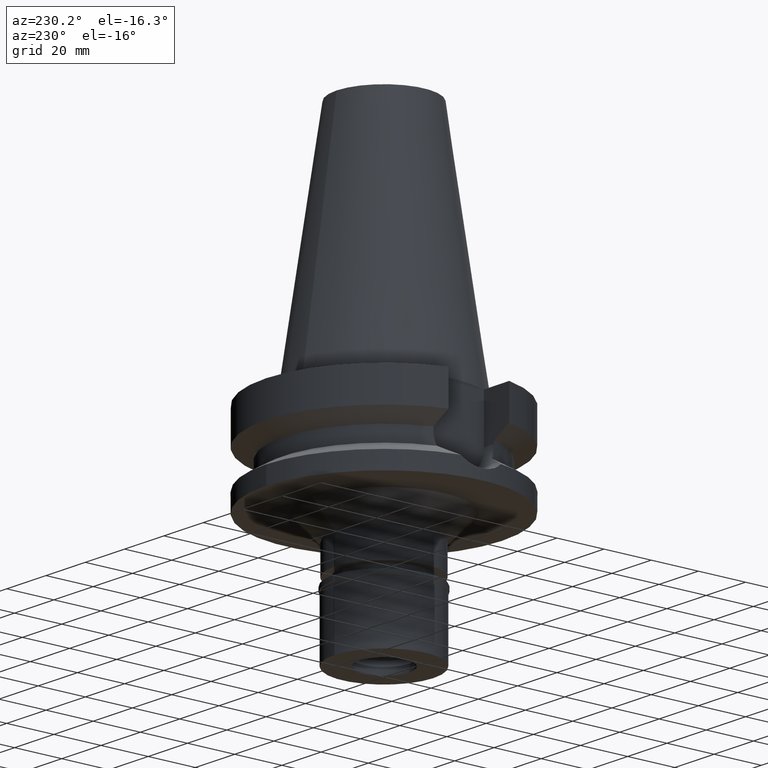
[diagram: clean part render]
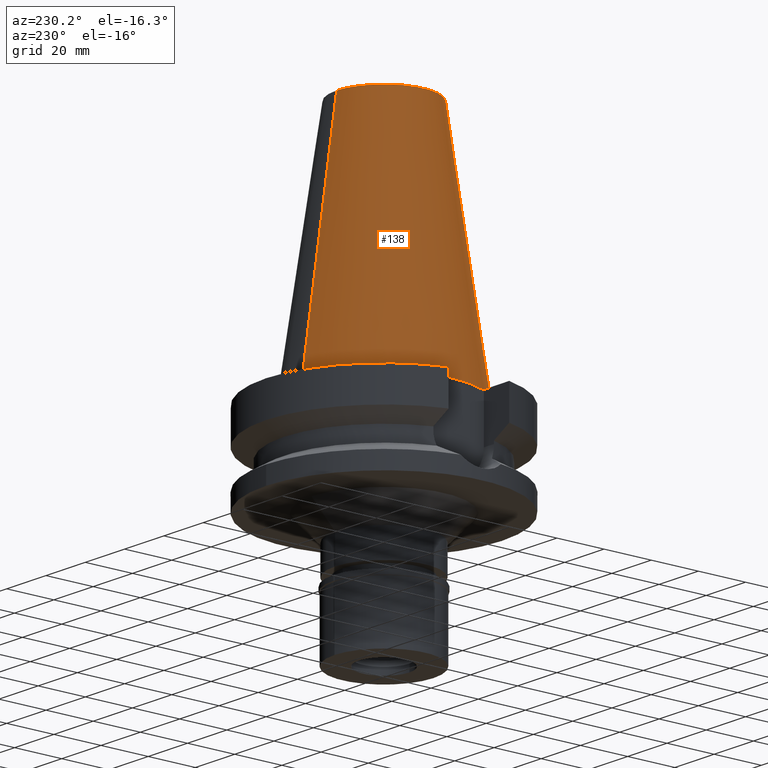
[diagram: same view with one face highlighted and labeled with its STEP entity id]
A machine part, auxiliary view. The second image highlights one B-rep face of the part: STEP entity #138.
In plain terms, the highlighted conical surface has half-angle 8.297 deg.
Its self-contained STEP definition (entity closure, byte-faithful):
#30 = DIRECTION ( 'NONE',  ( 0.0000000000000000000, 0.1443043893538948075, -0.9895333461855641000 ) ) ;
#116 = VECTOR ( 'NONE', #30, 1000.000000000000114 ) ;
#138 = ADVANCED_FACE ( 'NONE', ( #3063 ), #728, .T. ) ;
#299 = EDGE_CURVE ( 'NONE', #518, #1957, #807, .T. ) ;
#382 = ORIENTED_EDGE ( 'NONE', *, *, #2991, .F. ) ;
#398 = DIRECTION ( 'NONE',  ( 0.0000000000000000000, 0.0000000000000000000, -1.000000000000000000 ) ) ;
#429 = DIRECTION ( 'NONE',  ( 0.0000000000000000000, -1.000000000000000000, 0.0000000000000000000 ) ) ;
#431 = ORIENTED_EDGE ( 'NONE', *, *, #299, .T. ) ;
#518 = VERTEX_POINT ( 'NONE', #1500 ) ;
#621 = VECTOR ( 'NONE', #2534, 1000.000000000000114 ) ;
#728 = CONICAL_SURFACE ( 'NONE', #1478, 27.50221485948000222, 0.1448099680379422438 ) ;
#734 = CIRCLE ( 'NONE', #2812, 20.07942971896000017 ) ;
#807 = LINE ( 'NONE', #1709, #116 ) ;
#848 = ORIENTED_EDGE ( 'NONE', *, *, #1169, .F. ) ;
#966 = DIRECTION ( 'NONE',  ( 0.0000000000000000000, 0.0000000000000000000, -1.000000000000000000 ) ) ;
#1070 = VERTEX_POINT ( 'NONE', #1358 ) ;
#1129 = CARTESIAN_POINT ( 'NONE',  ( 0.0000000000000000000, 1.847992019912999597E-14, 101.7999999999999972 ) ) ;
#1169 = EDGE_CURVE ( 'NONE', #1224, #1957, #2964, .T. ) ;
#1184 = CARTESIAN_POINT ( 'NONE',  ( 0.0000000000000000000, 1.847992019912999597E-14, 3.979039320256999774E-13 ) ) ;
#1224 = VERTEX_POINT ( 'NONE', #2394 ) ;
#1358 = CARTESIAN_POINT ( 'NONE',  ( 0.0000000000000000000, -20.07942971896000017, 101.7999999999999972 ) ) ;
#1478 = AXIS2_PLACEMENT_3D ( 'NONE', #2387, #966, #429 ) ;
#1500 = CARTESIAN_POINT ( 'NONE',  ( 0.0000000000000000000, 20.07942971896000017, 101.7999999999999972 ) ) ;
#1537 = DIRECTION ( 'NONE',  ( 0.0000000000000000000, -1.000000000000000000, 0.0000000000000000000 ) ) ;
#1604 = LINE ( 'NONE', #2985, #621 ) ;
#1641 = AXIS2_PLACEMENT_3D ( 'NONE', #1184, #398, #2310 ) ;
#1709 = CARTESIAN_POINT ( 'NONE',  ( 0.0000000000000000000, 20.07942971896000017, 101.7999999999999972 ) ) ;
#1957 = VERTEX_POINT ( 'NONE', #2072 ) ;
#2072 = CARTESIAN_POINT ( 'NONE',  ( 0.0000000000000000000, 34.92499999999999716, 4.263256414560999963E-13 ) ) ;
#2242 = EDGE_CURVE ( 'NONE', #1070, #518, #734, .T. ) ;
#2298 = EDGE_LOOP ( 'NONE', ( #848, #382, #2916, #431 ) ) ;
#2310 = DIRECTION ( 'NONE',  ( 0.0000000000000000000, -1.000000000000000000, 0.0000000000000000000 ) ) ;
#2387 = CARTESIAN_POINT ( 'NONE',  ( 0.0000000000000000000, 1.847992019912999597E-14, 50.89999999999999858 ) ) ;
#2394 = CARTESIAN_POINT ( 'NONE',  ( 0.0000000000000000000, -34.92499999999999716, 4.263256414560999963E-13 ) ) ;
#2526 = DIRECTION ( 'NONE',  ( 0.0000000000000000000, 0.0000000000000000000, -1.000000000000000000 ) ) ;
#2534 = DIRECTION ( 'NONE',  ( 0.0000000000000000000, -0.1443043893538948075, -0.9895333461855641000 ) ) ;
#2812 = AXIS2_PLACEMENT_3D ( 'NONE', #1129, #2526, #1537 ) ;
#2916 = ORIENTED_EDGE ( 'NONE', *, *, #2242, .T. ) ;
#2964 = CIRCLE ( 'NONE', #1641, 34.92499999999999716 ) ;
#2985 = CARTESIAN_POINT ( 'NONE',  ( 0.0000000000000000000, -20.07942971896000017, 101.7999999999999972 ) ) ;
#2991 = EDGE_CURVE ( 'NONE', #1070, #1224, #1604, .T. ) ;
#3063 = FACE_OUTER_BOUND ( 'NONE', #2298, .T. ) ;